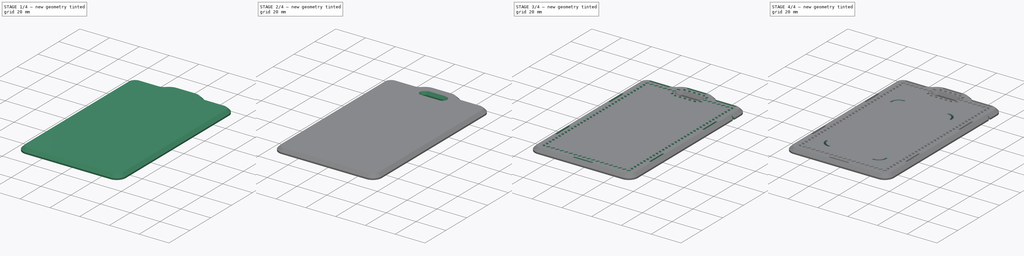
[diagram: build sequence overview — one tinted view per stage of 4, left to right]
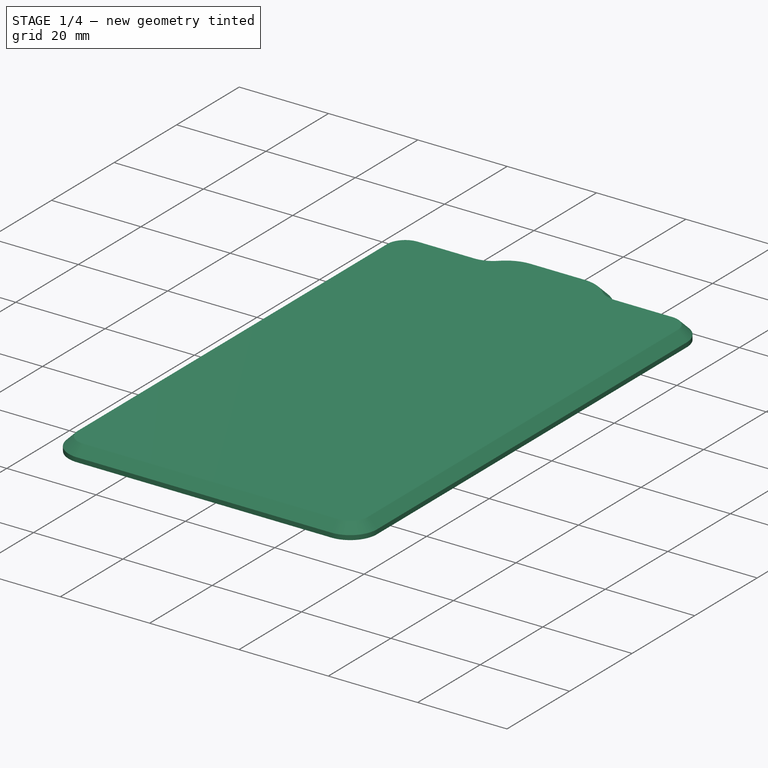
[diagram: stage 1 of 4 — iso view after this stage's code; geometry added in this stage tinted green]
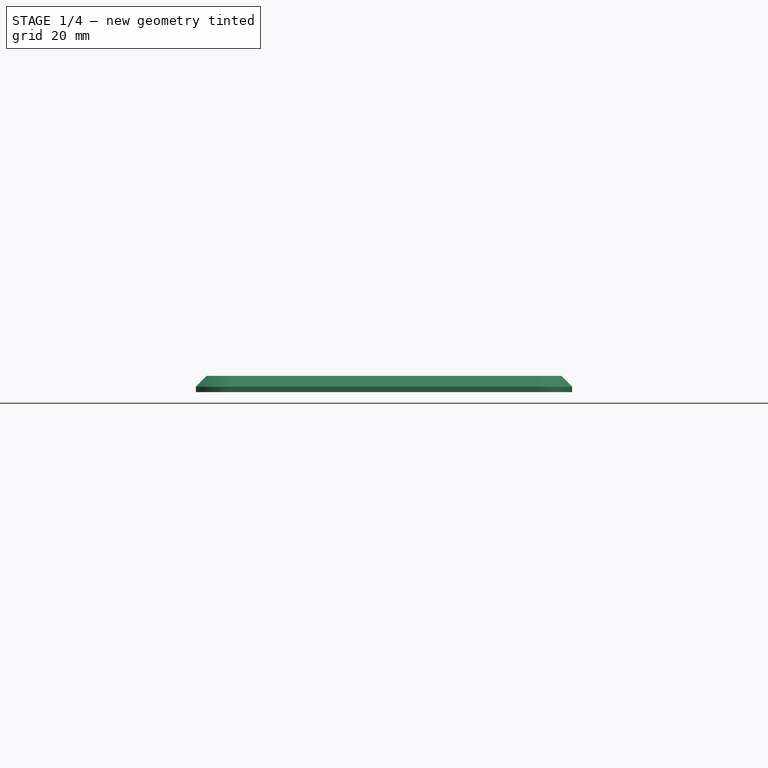
[diagram: stage 1 of 4 — front view after this stage's code; geometry added in this stage tinted green]
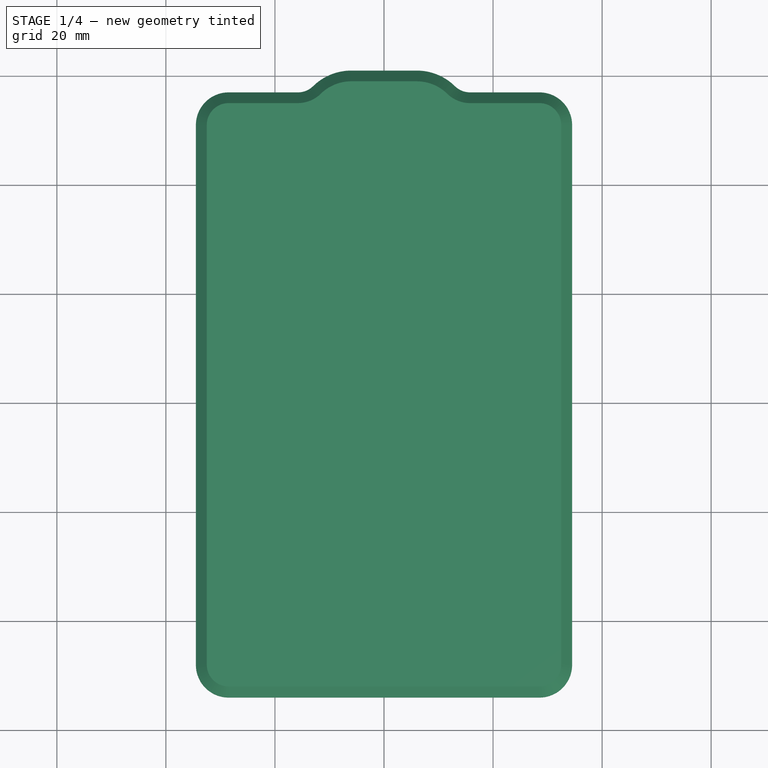
[diagram: stage 1 of 4 — top view after this stage's code; geometry added in this stage tinted green]
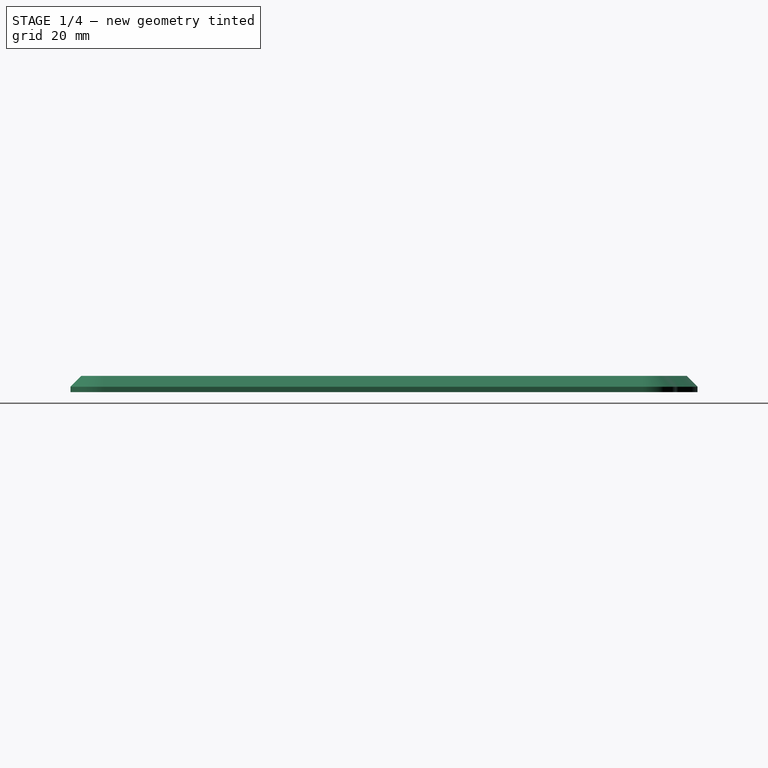
[diagram: stage 1 of 4 — right view after this stage's code; geometry added in this stage tinted green]
FCSTD DOCUMENT  (FreeCAD 1.0R39109 (Git))
Label: capsule hole badge holder
License: All rights reserved
objects: Sketcher::SketchObject×10, Part::FeaturePython×7, Part::Part2DObjectPython×6, PartDesign::SubShapeBinder×6, PartDesign::Pocket×6, TechDraw::DrawProjGroupItem×2, TechDraw::DrawViewDimension×2, App::DocumentObjectGroup×2, PartDesign::Pad×2, TechDraw::DrawSVGTemplate×1, App::Part×1, TechDraw::DrawPage×1, PartDesign::Mirrored×1, PartDesign::Body×1
note: 62 computed .brp shape members not serialized (recipe doc carries the construction recipe); baked Part::Feature solids carry a one-line shape summary decoded from their .brp

FEATURE [Sketcher::SketchObject] Sketch  label="Outline"
  ArcFitTolerance = 1e-06
  AttachmentSupport = -> [XY_Plane]
  FullyConstrained = true
  MakeInternals = false
  MapMode = 5
  sketch-geometry (23):
    g0: LineSegment StartX=-28.5 StartY=-51 StartZ=0 EndX=28.5 EndY=-51 EndZ=0
    g1: LineSegment StartX=31.5 StartY=-48 StartZ=0 EndX=31.5 EndY=51 EndZ=0
    g2: LineSegment StartX=-31.5 StartY=51 StartZ=0 EndX=-31.5 EndY=-48 EndZ=0
    g3: GeomPoint [constr] X=0 Y=0 Z=0
    g4: ArcOfCircle CenterX=-6 CenterY=51 CenterZ=0 NormalX=0 NormalY=0 NormalZ=1 AngleXU=0 Radius=2 StartAngle=1.5708 EndAngle=4.71239
    g5: ArcOfCircle CenterX=6 CenterY=51 CenterZ=0 NormalX=0 NormalY=0 NormalZ=1 AngleXU=0 Radius=2 StartAngle=4.71239 EndAngle=7.85398
    g6: LineSegment StartX=-6 StartY=53 StartZ=0 EndX=6 EndY=53 EndZ=0
    g7: LineSegment StartX=-6 StartY=49 StartZ=0 EndX=6 EndY=49 EndZ=0
    g8: ArcOfCircle CenterX=-28.5 CenterY=51 CenterZ=0 NormalX=0 NormalY=0 NormalZ=1 AngleXU=0 Radius=3 StartAngle=1.5708 EndAngle=3.14159
    g9: ArcOfCircle CenterX=28.5 CenterY=51 CenterZ=0 NormalX=0 NormalY=0 NormalZ=1 AngleXU=0 Radius=3 StartAngle=0 EndAngle=1.5708
    g10: LineSegment StartX=-15.798 StartY=54 StartZ=0 EndX=-28.5 EndY=54 EndZ=0
    g11: LineSegment StartX=15.798 StartY=54 StartZ=0 EndX=28.5 EndY=54 EndZ=0
    g12: LineSegment StartX=6 StartY=58 StartZ=0 EndX=-6 EndY=58 EndZ=0
    g13: ArcOfCircle CenterX=28.5 CenterY=-48 CenterZ=0 NormalX=0 NormalY=0 NormalZ=1 AngleXU=0 Radius=3 StartAngle=4.71239 EndAngle=6.28319
    g14: GeomPoint [constr] X=31.5 Y=-51 Z=0
    g15: ArcOfCircle CenterX=-28.5 CenterY=-48 CenterZ=0 NormalX=0 NormalY=0 NormalZ=1 AngleXU=0 Radius=3 StartAngle=3.14159 EndAngle=4.71239
    g16: GeomPoint [constr] X=-31.5 Y=-51 Z=0
    g17: GeomPoint [constr] X=-8 Y=51 Z=0
    g18: GeomPoint [constr] X=8 Y=51 Z=0
    g19: ArcOfCircle CenterX=-6 CenterY=51 CenterZ=0 NormalX=0 NormalY=0 NormalZ=1 AngleXU=0 Radius=7 StartAngle=1.5708 EndAngle=2.34599
    g20: ArcOfCircle CenterX=-15.798 CenterY=61 CenterZ=0 NormalX=0 NormalY=0 NormalZ=1 AngleXU=0 Radius=7 StartAngle=4.71239 EndAngle=5.48758
    g21: ArcOfCircle CenterX=6 CenterY=51 CenterZ=0 NormalX=0 NormalY=0 NormalZ=1 AngleXU=0 Radius=7 StartAngle=0.795603 EndAngle=1.5708
    g22: ArcOfCircle CenterX=15.798 CenterY=61 CenterZ=0 NormalX=0 NormalY=0 NormalZ=1 AngleXU=0 Radius=7 StartAngle=3.9372 EndAngle=4.71239
  constraints (54):
    c: Horizontal(g0)
    c: Vertical(g1)
    c: Vertical(g2)
    c: Symmetric(g1,g16,g3)
    c: Coincident(g3,g-1)
    c: Tangent(g4,g6) = 1.5708
    c: Tangent(g4,g7) = -1.5708
    c: Tangent(g5,g6) = 1.5708
    c: Tangent(g5,g7) = -1.5708
    c: Equal(g4,g5)
    c: Symmetric(g4,g5,g-2)
    c: Coincident(g8,g2)
    c: Coincident(g9,g1)
    c: Equal(g8,g9)
    c: Horizontal(g2,g1)
    c: Horizontal(g8,g2)
    c: Vertical(g8,g8)
    c: Horizontal(g9,g1)
    c: Vertical(g9,g9)
    c: Coincident(g10,g8)
    c: Coincident(g11,g9)
    c: Horizontal(g11)
    c: Radius(g9) = 3
    c: DistanceX(g16,g14) = 63
    c: DistanceY(g14,g9) = 105
    c: PointOnObject(g14,g1)
    c: PointOnObject(g14,g0)
    c: Tangent(g1,g13) = -1.5708
    c: Tangent(g0,g13) = -1.5708
    c: PointOnObject(g16,g2)
    c: PointOnObject(g16,g0)
    c: Tangent(g2,g15) = -1.5708
    c: Tangent(g0,g15) = -1.5708
    c: Equal(g15,g13)
    c: Equal(g15,g8)
    c: Distance(g6,g7) = 4
    c: PointOnObject(g17,g4)
    c: PointOnObject(g18,g5)
    c: Horizontal(g17,g18)
    c: Horizontal(g18,g5)
    c: DistanceX(g17,g18) = 16
    c: Symmetric(g12,g12,g-2)
    c: Symmetric(g10,g11,g-2)
    c: Equal(g20,g19)
    c: Equal(g19,g21)
    c: Tangent(g20,g19) = 1.5708
    c: Tangent(g20,g10) = 1.5708
    c: Tangent(g19,g12) = -1.5708
    c: Tangent(g21,g12) = -1.5708
    c: Tangent(g22,g21) = 1.5708
    c: Tangent(g22,g11) = -1.5708
    c: Horizontal(g5,g9)
    c: Distance(g6,g12) = 5
    c: Coincident(g19,g4)
FEATURE [Sketcher::SketchObject] Sketch001  label="punch guide"
  ArcFitTolerance = 1e-06
  AttachmentSupport = -> [XY_Plane]
  ExternalGeometry = -> [Sketch]
  FullyConstrained = true
  MakeInternals = false
  MapMode = 5
  sketch-geometry (10):
    g0: LineSegment StartX=28.5 StartY=51 StartZ=0 EndX=28.5 EndY=-45 EndZ=0
    g1: LineSegment StartX=28.5 StartY=-48 StartZ=0 EndX=-25.5 EndY=-48 EndZ=0
    g2: LineSegment StartX=-28.5 StartY=-48 StartZ=0 EndX=-28.5 EndY=48 EndZ=0
    g3: LineSegment [constr] StartX=-6 StartY=58 StartZ=0 EndX=-6 EndY=53 EndZ=0
    g4: ArcOfCircle CenterX=-6 CenterY=51 CenterZ=0 NormalX=0 NormalY=0 NormalZ=1 AngleXU=0 Radius=4.5 StartAngle=1.5708 EndAngle=4.71239
    g5: LineSegment StartX=-6 StartY=55.5 StartZ=0 EndX=6 EndY=55.5 EndZ=0
    g6: LineSegment StartX=-6 StartY=46.5 StartZ=0 EndX=6.00002 EndY=46.5 EndZ=0
    g7: ArcOfCircle CenterX=6 CenterY=51 CenterZ=0 NormalX=0 NormalY=0 NormalZ=1 AngleXU=0 Radius=4.5 StartAngle=4.71239 EndAngle=7.85398
    g8: LineSegment StartX=25.5 StartY=51 StartZ=0 EndX=13.5 EndY=51 EndZ=0
    g9: LineSegment StartX=-28.5 StartY=51 StartZ=0 EndX=-13.5 EndY=51 EndZ=0
  constraints (32):
    c: Coincident(g0,g-4)
    c: Vertical(g0)
    c: Distance(g0,g-6) = 3
    c: Coincident(g1,g-6)
    c: Horizontal(g1)
    c: DistanceX(g1,g1) = 54
    c: Distance(g1,g-8) = 3
    c: Coincident(g2,g-8)
    c: Vertical(g2)
    c: Distance(g2,g-10) = 3
    c: DistanceY(g0,g0) = 96
    c: Coincident(g3,g-15)
    c: Coincident(g3,g-13)
    c: Coincident(g4,g-13)
    c: Symmetric(g3,g3,g4)
    c: Vertical(g4,g4)
    c: Coincident(g5,g4)
    c: Horizontal(g5)
    c: Coincident(g6,g4)
    c: Horizontal(g6)
    c: Coincident(g7,g-14)
    c: Coincident(g7,g5)
    c: Coincident(g7,g6)
    c: Vertical(g5,g7)
    c: Horizontal(g8)
    c: DistanceX(g8,g0) = 3
    c: Horizontal(g0,g8)
    c: DistanceX(g8,g8) = 12
    c: Coincident(g9,g-10)
    c: Horizontal(g9)
    c: DistanceX(g9,g9) = 15
    c: Distance(g8,g7) = 3
FEATURE [Sketcher::SketchObject] Sketch002  label="punch hole profile"
  ArcFitTolerance = 1e-06
  AttachmentSupport = -> [XZ_Plane]
  FullyConstrained = true
  MakeInternals = false
  MapMode = 5
  Placement = pos=(0,0,0) rot=(1,0,0;1.5708rad)
  sketch-geometry (5):
    g0: LineSegment StartX=0.742462 StartY=-0.318198 StartZ=0 EndX=-0.318198 EndY=0.742462 EndZ=0
    g1: LineSegment StartX=-0.318198 StartY=0.742462 StartZ=0 EndX=-0.742462 EndY=0.318198 EndZ=0
    g2: LineSegment StartX=-0.742462 StartY=0.318198 StartZ=0 EndX=0.318198 EndY=-0.742462 EndZ=0
    g3: LineSegment StartX=0.318198 StartY=-0.742462 StartZ=0 EndX=0.742462 EndY=-0.318198 EndZ=0
    g4: GeomPoint [constr] X=0 Y=0 Z=0
  constraints (12):
    c: Coincident(g0,g1)
    c: Coincident(g1,g2)
    c: Coincident(g2,g3)
    c: Coincident(g3,g0)
    c: Symmetric(g2,g0,g4)
    c: Coincident(g4,g-1)
    c: Distance(g1,g1) = 0.6
    c: Parallel(g2,g0)
    c: Parallel(g1,g3)
    c: Perpendicular(g3,g2)
    c: Distance(g2,g2) = 1.5
    c: Angle(g2,g-1) = 0.785398
FEATURE [Part::Part2DObjectPython] Clone2D  label="Sketch002 (2D)"  # Draft 2D object (typed FeaturePython)
  Fuse = false
  Objects = -> [Sketch002]
  Placement = pos=(0,0,0) rot=(1,0,0;1.5708rad)
  Scale = (1,1,1)
FEATURE [Part::FeaturePython] PathArray  # WARN: FeaturePython — macro-defined, semantics opaque (R4)
  Align = true
  AlignMode = 0
  AlwaysSyncPlacement = false
  Base = -> Clone2D
  Count = 33
  EndOffset = 0
  ExpandArray = false
  ExtraTranslation = (0,0,0)
  ForceVertical = false
  Fuse = false
  PathObject = -> Sketch001
  PathSubelements = -> [Sketch001]
  PlacementList = 33 placements: arithmetic series from (28.5,51,0) step (0,-3,0) to (28.5,-45,0)
  ScaleList = (33) [(1,1,1),(1,1,1),(1,1,1),(1,1,1),(1,1,1),(1,1,1),(1,1,1),(1,1,1),(1,1,1),(1,1,1),(1,1,1),(1,1,1),(1,1,1),(1,1,1),(1,1,1),(1,1,1),(1,1,1),(1,1,1),+15 more]
  StartOffset = 0
  TangentVector = (1,0,0)
  VerticalVector = (0,0,1)
  expr: Count = 96 / 3 + 1
FEATURE [Part::Part2DObjectPython] Clone2D001  label="Sketch002 (2D)001"  # Draft 2D object (typed FeaturePython)
  Fuse = false
  Objects = -> [Sketch002]
  Placement = pos=(0,0,0) rot=(1,0,0;1.5708rad)
  Scale = (1,1,1)
FEATURE [Part::FeaturePython] PathArray001  # WARN: FeaturePython — macro-defined, semantics opaque (R4)
  Align = true
  AlignMode = 0
  AlwaysSyncPlacement = false
  Base = -> Clone2D001
  Count = 19
  EndOffset = 0
  ExpandArray = false
  ExtraTranslation = (0,0,0)
  ForceVertical = false
  Fuse = false
  PathObject = -> Sketch001
  PathSubelements = -> [Sketch001]
  PlacementList = 19 placements: arithmetic series from (28.5,-48,0) step (-3,0,0) to (-25.5,-48,0)
  ScaleList = (19) [(1,1,1),(1,1,1),(1,1,1),(1,1,1),(1,1,1),(1,1,1),(1,1,1),(1,1,1),(1,1,1),(1,1,1),(1,1,1),(1,1,1),(1,1,1),(1,1,1),(1,1,1),(1,1,1),(1,1,1),(1,1,1),+1 more]
  StartOffset = 0
  TangentVector = (1,0,0)
  VerticalVector = (0,0,1)
  expr: Count = 54 / 3 + 1
FEATURE [Part::Part2DObjectPython] Clone2D002  label="Sketch002 (2D)002"  # Draft 2D object (typed FeaturePython)
  Fuse = false
  Objects = -> [Sketch002]
  Placement = pos=(0,0,0) rot=(1,0,0;1.5708rad)
  Scale = (1,1,1)
FEATURE [Part::FeaturePython] PathArray002  # WARN: FeaturePython — macro-defined, semantics opaque (R4)
  Align = true
  AlignMode = 0
  AlwaysSyncPlacement = false
  Base = -> Clone2D002
  Count = 33
  EndOffset = 0
  ExpandArray = false
  ExtraTranslation = (0,0,0)
  ForceVertical = false
  Fuse = false
  PathObject = -> Sketch001
  PathSubelements = -> [Sketch001]
  PlacementList = 33 placements: arithmetic series from (-28.5,-48,0) step (0,3,0) to (-28.5,48,0)
  ScaleList = (33) [(1,1,1),(1,1,1),(1,1,1),(1,1,1),(1,1,1),(1,1,1),(1,1,1),(1,1,1),(1,1,1),(1,1,1),(1,1,1),(1,1,1),(1,1,1),(1,1,1),(1,1,1),(1,1,1),(1,1,1),(1,1,1),+15 more]
  StartOffset = 0
  TangentVector = (1,0,0)
  VerticalVector = (0,0,1)
  expr: Count = 96 / 3 + 1
FEATURE [Sketcher::SketchObject] Sketch003  label="punch guide capsule hole top"
  ArcFitTolerance = 1e-06
  AttachmentSupport = -> [XY_Plane]
  ExternalGeometry = -> [Sketch001]
  FullyConstrained = false
  MakeInternals = false
  MapMode = 5
  sketch-geometry (18):
    g0: BSplineCurve PolesCount=3 KnotsCount=2 Degree=2 IsPeriodic=0
    g1: BSplineCurve PolesCount=3 KnotsCount=2 Degree=2 IsPeriodic=0
    g2: BSplineCurve PolesCount=2 KnotsCount=2 Degree=1 IsPeriodic=0
    g3: Circle [constr] CenterX=-6 CenterY=55.5 CenterZ=0 NormalX=0 NormalY=0 NormalZ=1 AngleXU=0 Radius=1
    g4: Circle [constr] CenterX=-10.5 CenterY=55.5 CenterZ=0 NormalX=0 NormalY=0 NormalZ=1 AngleXU=0 Radius=0.71
    g5: Circle [constr] CenterX=-10.5 CenterY=51 CenterZ=0 NormalX=0 NormalY=0 NormalZ=1 AngleXU=0 Radius=1
    g6: GeomPoint [constr] X=-6 Y=55.5 Z=0
    g7: GeomPoint [constr] X=-10.5 Y=51 Z=0
    g8: Circle [constr] CenterX=-6 CenterY=55.5 CenterZ=0 NormalX=0 NormalY=0 NormalZ=1 AngleXU=0 Radius=1
    g9: Circle [constr] CenterX=6 CenterY=55.5 CenterZ=0 NormalX=0 NormalY=0 NormalZ=1 AngleXU=0 Radius=1
    g10: GeomPoint [constr] X=-6 Y=55.5 Z=0
    g11: GeomPoint [constr] X=6 Y=55.5 Z=0
    g12: Circle [constr] CenterX=10.5 CenterY=51 CenterZ=0 NormalX=0 NormalY=0 NormalZ=1 AngleXU=0 Radius=1
    g13: Circle [constr] CenterX=10.5 CenterY=55.5 CenterZ=0 NormalX=0 NormalY=0 NormalZ=1 AngleXU=0 Radius=0.71
    g14: Circle [constr] CenterX=6 CenterY=55.5 CenterZ=0 NormalX=0 NormalY=0 NormalZ=1 AngleXU=0 Radius=1
    g15: GeomPoint [constr] X=10.5 Y=51 Z=0
    g16: GeomPoint [constr] X=6 Y=55.5 Z=0
    g17: Circle CenterX=0 CenterY=51 CenterZ=0 NormalX=0 NormalY=0 NormalZ=1 AngleXU=0 Radius=0.611587
  constraints (35):
    c: Coincident(g0,g-4)
    c: Coincident(g1,g-5)
    c: Coincident(g2,g0)
    c: Coincident(g2,g1)
    c: InternalAlignment(g3,g0)
    c: Weight(g3) = 1
    c: InternalAlignment(g4,g0)
    c: InternalAlignment(g5,g0)
    c: Equal(g5,g3)
    c: InternalAlignment(g6,g0)
    c: InternalAlignment(g7,g0)
    c: InternalAlignment(g8,g2)
    c: Weight(g8) = 1
    c: InternalAlignment(g9,g2)
    c: Equal(g9,g8)
    c: InternalAlignment(g10,g2)
    c: InternalAlignment(g11,g2)
    c: InternalAlignment(g12,g1)
    c: Weight(g12) = 1
    c: InternalAlignment(g13,g1)
    c: InternalAlignment(g14,g1)
    c: Equal(g14,g12)
    c: InternalAlignment(g15,g1)
    c: InternalAlignment(g16,g1)
    c: PointOnObject(g0,g-3)
    c: Horizontal(g0,g-3)
    c: PointOnObject(g1,g-5)
    c: Horizontal(g1,g-5)
    c: Symmetric(g4,g13,g-2)
    c: Vertical(g1,g13)
    c: Horizontal(g13,g1)
    c: Equal(g13,g4)
    c: Weight(g13) = 0.71
    c: PointOnObject(g17,g-2)
    c: Horizontal(g17,g-5)
FEATURE [Part::Part2DObjectPython] Clone2D004  label="Sketch002 (2D)004"  # Draft 2D object (typed FeaturePython)
  Fuse = false
  Objects = -> [Sketch002]
  Placement = pos=(0,0,0) rot=(1,0,0;-1.5708rad)
  Scale = (1,1,1)
FEATURE [Part::FeaturePython] PathArray003  # WARN: FeaturePython — macro-defined, semantics opaque (R4)
  Align = true
  AlignMode = 0
  AlwaysSyncPlacement = false
  Base = -> Clone2D004
  Count = 9
  EndOffset = 0
  ExpandArray = false
  ExtraTranslation = (0,0,0)
  ForceVertical = false
  Fuse = false
  PathObject = -> Sketch003
  PlacementList = 9 placements: [(10.5,51,0),(9.3678,53.9893,0),(6.53435,55.4684,0),(3.2678,55.5,0),(8.88178e-16,55.5,0),(-3.2678,55.5,0),(-6.53435,55.4684,0),(-9.3678,53.9893,0),(-10.5,51,0)]
  ScaleList = (9) [(1,1,1),(1,1,1),(1,1,1),(1,1,1),(1,1,1),(1,1,1),(1,1,1),(1,1,1),(1,1,1)]
  StartOffset = 0
  TangentVector = (1,0,0)
  VerticalVector = (0,0,1)
FEATURE [Part::Part2DObjectPython] Clone2D005  label="Sketch002 (2D)005"  # Draft 2D object (typed FeaturePython)
  Fuse = false
  Objects = -> [Sketch002]
  Placement = pos=(0,0,0) rot=(1,0,0;1.5708rad)
  Scale = (1,1,1)
FEATURE [Part::FeaturePython] PathArray004  # WARN: FeaturePython — macro-defined, semantics opaque (R4)
  Align = true
  AlignMode = 0
  AlwaysSyncPlacement = false
  Base = -> Clone2D005
  Count = 5
  EndOffset = 0
  ExpandArray = false
  ExtraTranslation = (0,0,0)
  ForceVertical = false
  Fuse = false
  PathObject = -> Sketch001
  PathSubelements = -> [Sketch001]
  PlacementList = 5 placements: arithmetic series from (25.5,51,0) step (-3,0,0) to (13.5,51,0)
  ScaleList = (5) [(1,1,1),(1,1,1),(1,1,1),(1,1,1),(1,1,1)]
  StartOffset = 0
  TangentVector = (1,0,0)
  VerticalVector = (0,0,1)
  expr: Count = 12 / 3 + 1
FEATURE [Part::Part2DObjectPython] Clone2D006  label="Sketch002 (2D)006"  # Draft 2D object (typed FeaturePython)
  Fuse = false
  Objects = -> [Sketch002]
  Placement = pos=(0,0,0) rot=(1,0,0;1.5708rad)
  Scale = (1,1,1)
FEATURE [Part::FeaturePython] PathArray005  # WARN: FeaturePython — macro-defined, semantics opaque (R4)
  Align = true
  AlignMode = 0
  AlwaysSyncPlacement = false
  Base = -> Clone2D006
  Count = 6
  EndOffset = 0
  ExpandArray = false
  ExtraTranslation = (0,0,0)
  ForceVertical = false
  Fuse = false
  PathObject = -> Sketch001
  PathSubelements = -> [Sketch001]
  PlacementList = 6 placements: arithmetic series from (-28.5,51,0) step (3,0,0) to (-13.5,51,0)
  ScaleList = (6) [(1,1,1),(1,1,1),(1,1,1),(1,1,1),(1,1,1),(1,1,1)]
  StartOffset = 0
  TangentVector = (1,0,0)
  VerticalVector = (0,0,1)
  expr: Count = 15 / 3 + 1
FEATURE [Part::FeaturePython] Array  # Draft array (typed FeaturePython)
  AlwaysSyncPlacement = false
  Angle = 360
  ArrayType = 1
  Axis = (0,0,1)
  Base = -> PathArray003
  Center = (0,51,0)
  Count = 2
  ExpandArray = false
  Fuse = true
  IntervalAxis = (0,0,0)
  IntervalX = (50,0,0)
  IntervalY = (0,50,0)
  IntervalZ = (0,0,50)
  NumberCircles = 3
  NumberPolar = 2
  NumberX = 2
  NumberY = 2
  NumberZ = 1
  PlacementList = 2 placements: [(0,0,0),(6.2457e-15,102,0)]
  RadialDistance = 50
  ScaleList = (2) [(1,1,1),(1,1,1)]
  Symmetry = 1
  TangentialDistance = 25
FEATURE [TechDraw::DrawSVGTemplate] Template
  Height = 297
  Orientation = 0
  Template = /Applications/FreeCAD.app/Contents/Resources/share/Mod/TechDraw/Templates/A4_Portrait_blank.svg
  Width = 210
FEATURE [Sketcher::SketchObject] Sketch004
  ArcFitTolerance = 1e-06
  FullyConstrained = true
  MakeInternals = false
  sketch-geometry (2):
    g0: LineSegment StartX=-100 StartY=140 StartZ=0 EndX=-100 EndY=-140 EndZ=0
    g1: LineSegment StartX=-100 StartY=140 StartZ=0 EndX=100 EndY=140 EndZ=0
  constraints (5):
    c: DistanceY(g0,g0) = 280
    c: Coincident(g1,g0)
    c: DistanceX(g1,g1) = 200
    c: Symmetric(g0,g1,g-2)
    c: Symmetric(g0,g0,g-1)
FEATURE [Sketcher::SketchObject] Sketch006
  ArcFitTolerance = 1e-06
  ExternalGeometry = -> [Sketch]
  FullyConstrained = true
  MakeInternals = false
  sketch-geometry (1):
    g0: LineSegment StartX=-31.5 StartY=44 StartZ=0 EndX=31.5 EndY=44 EndZ=0
  constraints (4):
    c: Horizontal(g0)
    c: PointOnObject(g0,g-3)
    c: PointOnObject(g0,g-4)
    c: DistanceY(g-1,g0) = 44
FEATURE [TechDraw::DrawProjGroupItem] View001
  CoarseView = false
  Direction = (0,0,1)
  Focus = 100
  HardHidden = false
  IsoCount = 0
  IsoHidden = false
  IsoVisible = false
  LockPosition = false
  Perspective = false
  Rotation = 0
  RotationVector = (1,0,0)
  ScaleType = 0
  ScrubCount = 1
  SeamHidden = false
  SeamVisible = false
  SmoothHidden = false
  SmoothVisible = true
  Source = -> [Sketch004]
  Type = 0
  X = 105
  XDirection = (1,0,0)
  Y = 148.5
FEATURE [TechDraw::DrawViewDimension] Dimension
  AngleOverride = false
  Arbitrary = false
  ArbitraryTolerances = false
  BoxCorners = (2) [(-100,-140,0),(100,140,0)]
  EqualTolerance = true
  ExtensionAngle = 0
  FormatSpec = %.2w
  FormatSpecOverTolerance = %+.2w
  FormatSpecUnderTolerance = %+.2w
  Inverted = false
  LineAngle = 0
  LockPosition = false
  MeasureType = 1
  OverTolerance = 0
  References2D = -> [View001]
  Rotation = 0
  ScaleType = 0
  TheoreticalExact = false
  Type = 2
  UnderTolerance = 0
  X = -94.6958
  Y = 0
FEATURE [TechDraw::DrawViewDimension] Dimension001
  AngleOverride = false
  Arbitrary = false
  ArbitraryTolerances = false
  BoxCorners = (2) [(-100,-140,0),(100,140,0)]
  EqualTolerance = true
  ExtensionAngle = 0
  FormatSpec = %.2w
  FormatSpecOverTolerance = %+.2w
  FormatSpecUnderTolerance = %+.2w
  Inverted = false
  LineAngle = 0
  LockPosition = false
  MeasureType = 1
  OverTolerance = 0
  References2D = -> [View001]
  Rotation = 0
  ScaleType = 0
  TheoreticalExact = false
  Type = 1
  UnderTolerance = 0
  X = 0
  Y = 135.256
FEATURE [Sketcher::SketchObject] Sketch007  label="window"
  ArcFitTolerance = 1e-06
  AttachmentSupport = -> [XY_Plane]
  ExternalGeometry = -> [Sketch]
  FullyConstrained = true
  MakeInternals = false
  MapMode = 5
  sketch-geometry (15):
    g0: LineSegment StartX=-20 StartY=27.5 StartZ=0 EndX=-20 EndY=-34.5 EndZ=0
    g1: LineSegment StartX=-15 StartY=-39.5 StartZ=0 EndX=15 EndY=-39.5 EndZ=0
    g2: LineSegment StartX=20 StartY=-34.5 StartZ=0 EndX=20 EndY=27.5 EndZ=0
    g3: LineSegment StartX=15 StartY=32.5 StartZ=0 EndX=-15 EndY=32.5 EndZ=0
    g4: GeomPoint [constr] X=0 Y=-3.5 Z=0
    g5: ArcOfCircle CenterX=-15 CenterY=27.5 CenterZ=0 NormalX=0 NormalY=0 NormalZ=1 AngleXU=0 Radius=5 StartAngle=1.5708 EndAngle=3.14159
    g6: GeomPoint [constr] X=-20 Y=32.5 Z=0
    g7: ArcOfCircle CenterX=-15 CenterY=-34.5 CenterZ=0 NormalX=0 NormalY=0 NormalZ=1 AngleXU=0 Radius=5 StartAngle=3.14159 EndAngle=4.71239
    g8: GeomPoint [constr] X=-20 Y=-39.5 Z=0
    g9: ArcOfCircle CenterX=15 CenterY=-34.5 CenterZ=0 NormalX=0 NormalY=0 NormalZ=1 AngleXU=0 Radius=5 StartAngle=4.71239 EndAngle=6.28319
    g10: GeomPoint [constr] X=20 Y=-39.5 Z=0
    g11: ArcOfCircle CenterX=15 CenterY=27.5 CenterZ=0 NormalX=0 NormalY=0 NormalZ=1 AngleXU=0 Radius=5 StartAngle=2e-16 EndAngle=1.5708
    g12: GeomPoint [constr] X=20 Y=32.5 Z=0
    g13: LineSegment [constr] StartX=20 StartY=-39.5 StartZ=0 EndX=31.5 EndY=-39.5 EndZ=0
    g14: LineSegment [constr] StartX=20 StartY=-39.5 StartZ=0 EndX=20 EndY=-51 EndZ=0
  constraints (35):
    c: Vertical(g0)
    c: Vertical(g2)
    c: Horizontal(g1)
    c: Horizontal(g3)
    c: Symmetric(g10,g6,g4)
    c: PointOnObject(g4,g-2)
    c: DistanceX(g8,g10) = 40
    c: DistanceY(g10,g12) = 72
    c: PointOnObject(g6,g3)
    c: PointOnObject(g6,g0)
    c: Tangent(g3,g5) = -1.5708
    c: Tangent(g0,g5) = -1.5708
    c: PointOnObject(g8,g0)
    c: PointOnObject(g8,g1)
    c: Tangent(g0,g7) = -1.5708
    c: Tangent(g1,g7) = -1.5708
    c: PointOnObject(g10,g1)
    c: PointOnObject(g10,g2)
    c: Tangent(g1,g9) = -1.5708
    c: Tangent(g2,g9) = -1.5708
    c: PointOnObject(g12,g2)
    c: PointOnObject(g12,g3)
    c: Tangent(g2,g11) = -1.5708
    c: Tangent(g3,g11) = -1.5708
    c: Equal(g5,g11)
    c: Equal(g11,g9)
    c: Equal(g9,g7)
    c: Radius(g11) = 5
    c: Coincident(g13,g10)
    c: PointOnObject(g13,g-3)
    c: Horizontal(g13)
    c: Coincident(g14,g10)
    c: PointOnObject(g14,g-4)
    c: Vertical(g14)
    c: Equal(g14,g13)
FEATURE [App::DocumentObjectGroup] Group001  label="punch holes"
  Group = -> [PathArray,PathArray001,PathArray002,PathArray004,PathArray005,Array]
FEATURE [App::Part] Part
  Group = -> [Sketch,Sketch007,Sketch002,Clone2D,Clone2D001,Clone2D002,Clone2D004,PathArray003,Clone2D005,Clone2D006,Sketch006,Sketch001,Sketch003,Group001,PathArray,PathArray001,PathArray002,PathArray004,PathArray005,Array]
  Origin = -> Origin
FEATURE [TechDraw::DrawProjGroupItem] View
  CoarseView = false
  Direction = (0,0,1)
  Focus = 100
  HardHidden = false
  IsoCount = 0
  IsoHidden = false
  IsoVisible = false
  LockPosition = false
  Perspective = false
  Rotation = 0
  RotationVector = (1,0,0)
  ScaleType = 0
  ScrubCount = 1
  SeamHidden = false
  SeamVisible = false
  SmoothHidden = false
  SmoothVisible = true
  Source = -> [Part]
  Type = 0
  X = 105
  XDirection = (1,0,0)
  Y = 148.5
FEATURE [TechDraw::DrawPage] Page
  KeepUpdated = true
  NextBalloonIndex = 1
  ProjectionType = 0
  Template = -> Template
  Views = -> [View001,Dimension,Dimension001,View]
FEATURE [App::DocumentObjectGroup] Group  label="drawings"
  Group = -> [Page,Sketch004]
FEATURE [PartDesign::SubShapeBinder] Binder
  BindCopyOnChange = 0
  BindMode = 0
  ClaimChildren = false
  Context = -> Body [Binder.]
  Fuse = false
  MakeFace = true
  OffsetFill = false
  OffsetIntersection = false
  OffsetJoinType = 0
  OffsetOpenResult = false
  PartialLoad = false
  Relative = true
  Support = -> [Part[Sketch.]]
  _Version = 2
FEATURE [PartDesign::SubShapeBinder] Binder001
  BindCopyOnChange = 0
  BindMode = 0
  ClaimChildren = false
  Context = -> Body [Binder001.]
  Fuse = false
  MakeFace = true
  OffsetFill = false
  OffsetIntersection = false
  OffsetJoinType = 0
  OffsetOpenResult = false
  PartialLoad = false
  Relative = true
  Support = -> [Part[Sketch007.]]
  _Version = 2
FEATURE [PartDesign::SubShapeBinder] Binder002
  BindCopyOnChange = 0
  BindMode = 0
  ClaimChildren = false
  Context = -> Body [Binder002.]
  Fuse = false
  MakeFace = true
  OffsetFill = false
  OffsetIntersection = false
  OffsetJoinType = 0
  OffsetOpenResult = false
  PartialLoad = false
  Relative = true
  Support = -> [Part[Sketch006.]]
  _Version = 2
FEATURE [PartDesign::SubShapeBinder] Binder003
  BindCopyOnChange = 0
  BindMode = 0
  ClaimChildren = false
  Context = -> Body [Binder003.]
  Fuse = false
  MakeFace = true
  OffsetFill = false
  OffsetIntersection = false
  OffsetJoinType = 0
  OffsetOpenResult = false
  PartialLoad = false
  Relative = true
  Support = -> [Part[Group001.]]
  _Version = 2
FEATURE [PartDesign::SubShapeBinder] Binder004
  BindCopyOnChange = 0
  BindMode = 0
  ClaimChildren = false
  Context = -> Body [Binder004.]
  Fuse = false
  MakeFace = true
  Offset = -3
  OffsetFill = false
  OffsetIntersection = false
  OffsetJoinType = 0
  OffsetOpenResult = false
  PartialLoad = false
  Relative = true
  Support = -> [Binder]
  _Version = 2
FEATURE [PartDesign::Pad] Pad
  Direction = (0,0,1)
  Length = 1
  Length2 = 10
  Profile = -> Binder004
  Suppressed = false
  Type = 0
FEATURE [PartDesign::Pad] Pad001
  BaseFeature = -> Pad
  Direction = (0,0,1)
  Length = 2
  Length2 = 10
  Profile = -> Pad [Face16]
  Suppressed = false
  TaperAngle = -45
  Type = 0
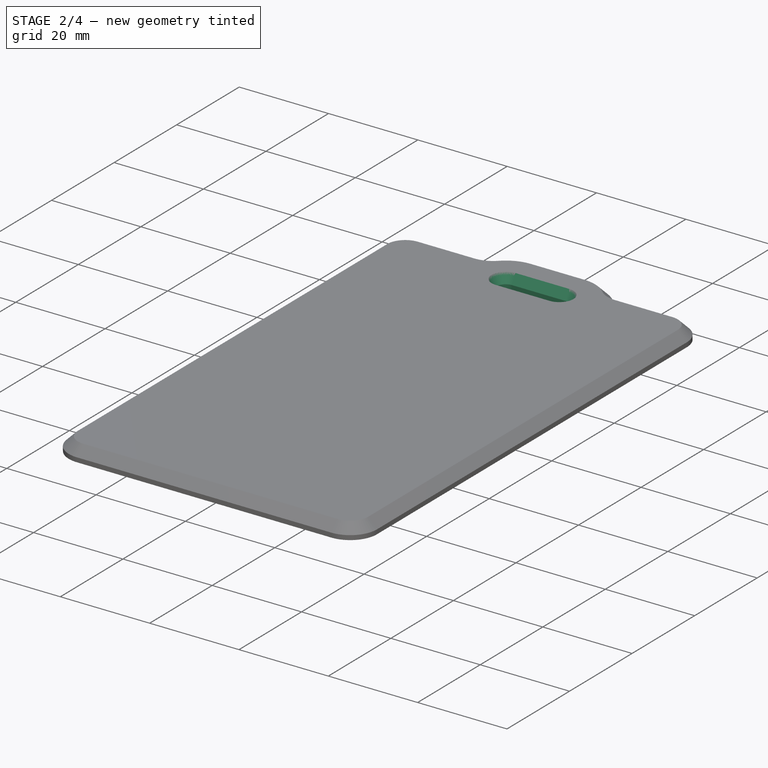
[diagram: stage 2 of 4 — iso view after this stage's code; geometry added in this stage tinted green]
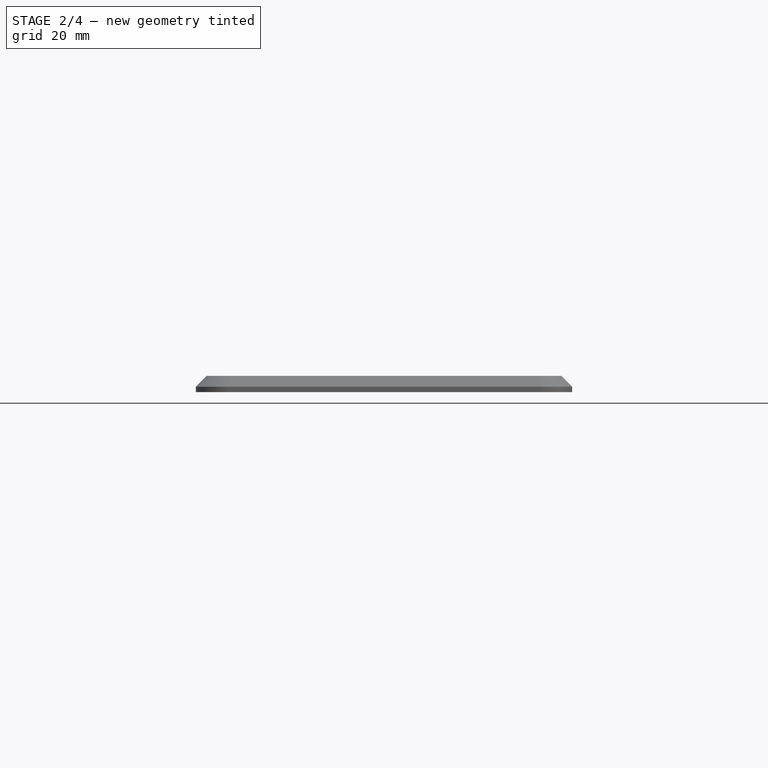
[diagram: stage 2 of 4 — front view after this stage's code; geometry added in this stage tinted green]
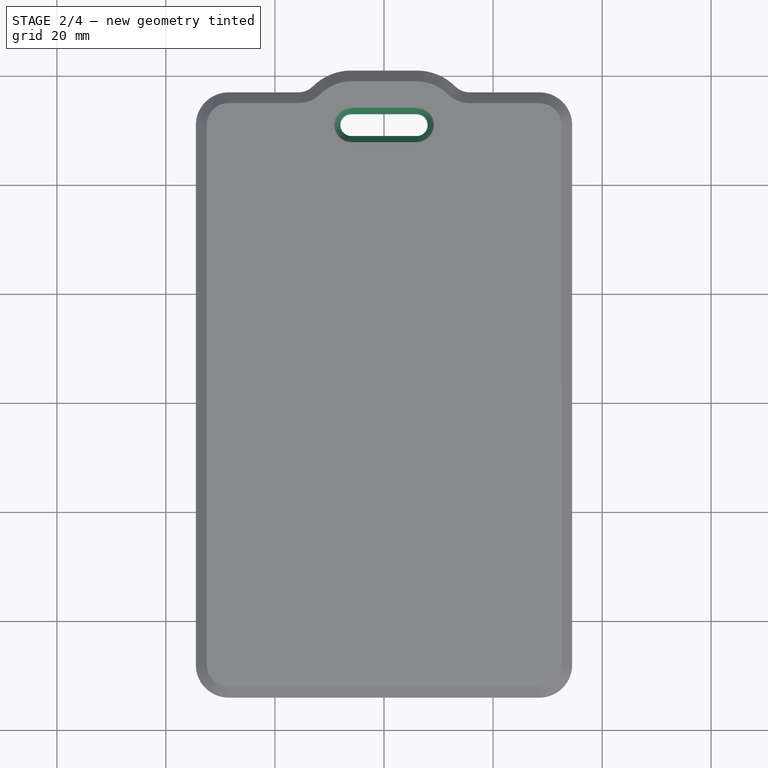
[diagram: stage 2 of 4 — top view after this stage's code; geometry added in this stage tinted green]
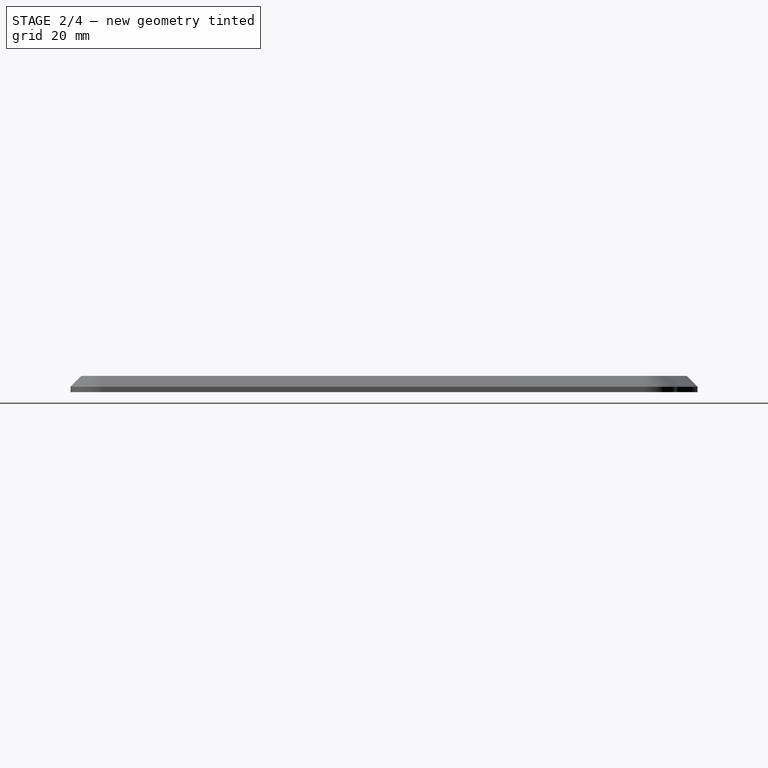
[diagram: stage 2 of 4 — right view after this stage's code; geometry added in this stage tinted green]
FEATURE [PartDesign::SubShapeBinder] Binder005
  BindCopyOnChange = 0
  BindMode = 0
  ClaimChildren = false
  Context = -> Body [Binder005.]
  Fuse = false
  MakeFace = true
  OffsetFill = false
  OffsetIntersection = false
  OffsetJoinType = 0
  OffsetOpenResult = false
  PartialLoad = false
  Relative = true
  Support = -> [Part[Sketch.Edge15,Sketch.Edge18,Sketch.Edge17,Sketch.Edge16]]
  _Version = 2
FEATURE [PartDesign::Pocket] Pocket
  BaseFeature = -> Pad001
  Direction = (0,0,-1)
  Length = 1
  Length2 = 5
  Profile = -> Binder005
  Reversed = true
  Suppressed = false
  Type = 0
FEATURE [PartDesign::Pocket] Pocket001
  BaseFeature = -> Pocket
  Direction = (0,0,1)
  Length = 5
  Length2 = 5
  Profile = -> Pocket [Face35]
  Suppressed = false
  TaperAngle = 30
  Type = 0
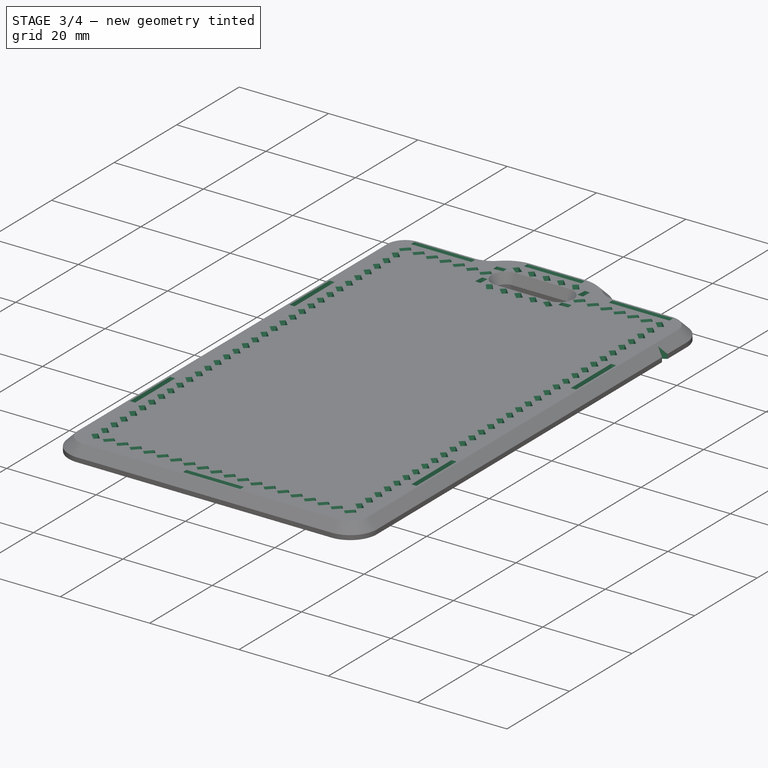
[diagram: stage 3 of 4 — iso view after this stage's code; geometry added in this stage tinted green]
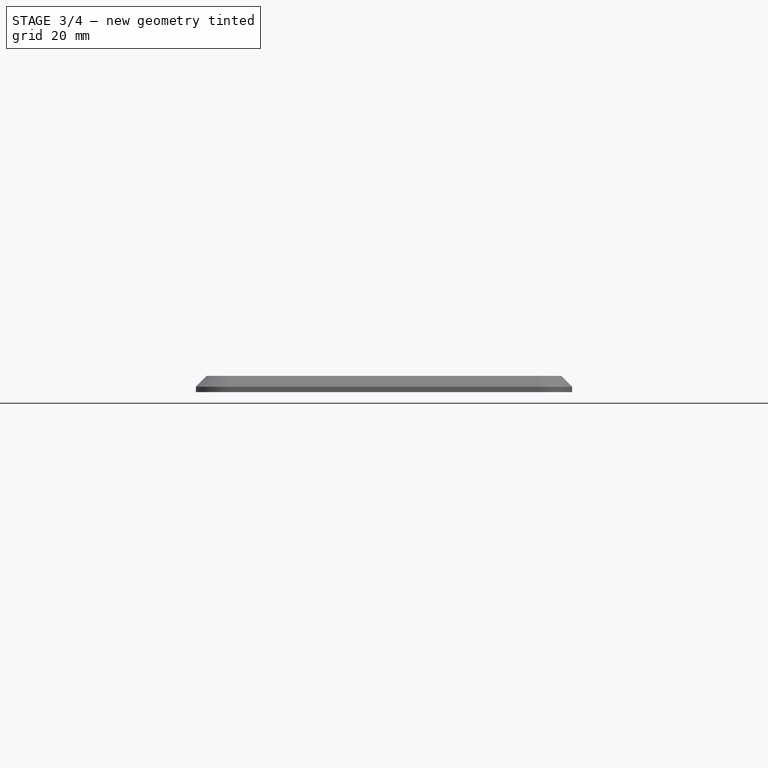
[diagram: stage 3 of 4 — front view after this stage's code; geometry added in this stage tinted green]
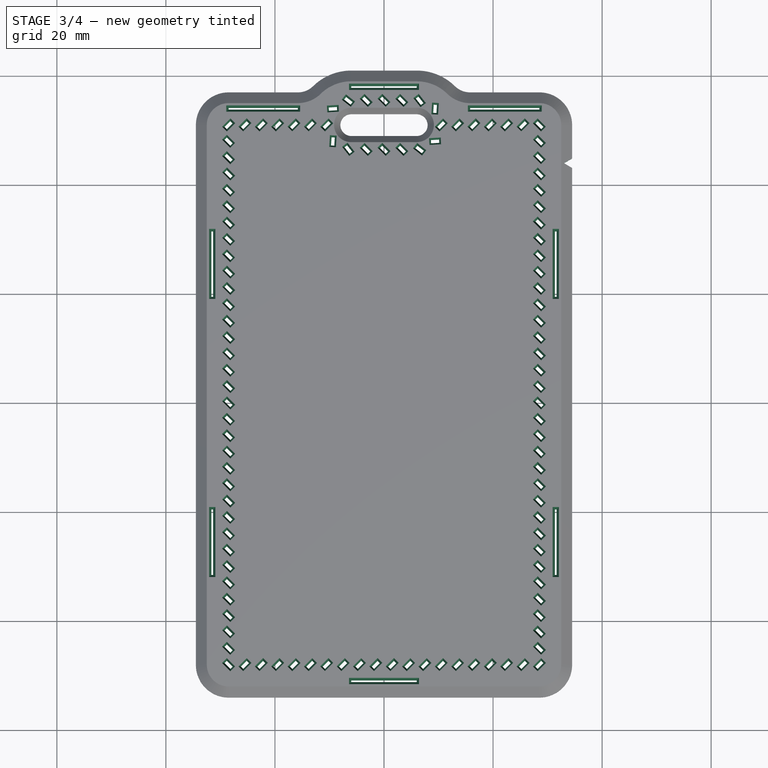
[diagram: stage 3 of 4 — top view after this stage's code; geometry added in this stage tinted green]
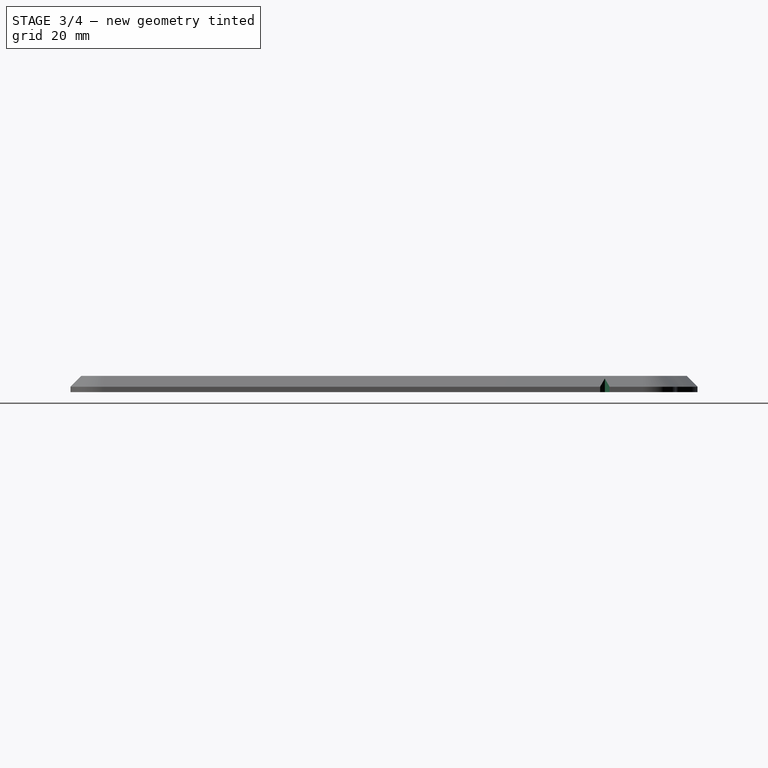
[diagram: stage 3 of 4 — right view after this stage's code; geometry added in this stage tinted green]
FEATURE [Sketcher::SketchObject] Sketch008
  ArcFitTolerance = 1e-06
  AttachmentSupport = -> [XY_Plane001]
  ExternalGeometry = -> [Binder]
  FullyConstrained = true
  MakeInternals = false
  MapMode = 5
  sketch-geometry (51):
    g0: LineSegment [constr] StartX=-28.5 StartY=54 StartZ=0 EndX=-15.798 EndY=54 EndZ=0
    g1: LineSegment [constr] StartX=-6 StartY=58 StartZ=0 EndX=6 EndY=58 EndZ=0
    g2: LineSegment [constr] StartX=15.798 StartY=54 StartZ=0 EndX=28.5 EndY=54 EndZ=0
    g3: LineSegment [constr] StartX=-31.5 StartY=31.5 StartZ=0 EndX=-31.5 EndY=19.5 EndZ=0
    g4: LineSegment [constr] StartX=31.5 StartY=31.5 StartZ=0 EndX=31.5 EndY=19.5 EndZ=0
    g5: LineSegment [constr] StartX=-31.5 StartY=-19.5 StartZ=0 EndX=-31.5 EndY=-31.5 EndZ=0
    g6: LineSegment [constr] StartX=31.5 StartY=-19.5 StartZ=0 EndX=31.5 EndY=-31.5 EndZ=0
    g7: LineSegment [constr] StartX=-6 StartY=-51 StartZ=0 EndX=6 EndY=-51 EndZ=0
    g8: LineSegment [constr] StartX=-31.5 StartY=51 StartZ=0 EndX=-31.5 EndY=31.5 EndZ=0
    g9: LineSegment [constr] StartX=-31.5 StartY=19.5 StartZ=0 EndX=-31.5 EndY=0 EndZ=0
    g10: LineSegment [constr] StartX=-31.5 StartY=0 StartZ=0 EndX=-31.5 EndY=-19.5 EndZ=0
    g11: LineSegment StartX=-6 StartY=57.85 StartZ=0 EndX=6 EndY=57.85 EndZ=0
    g12: LineSegment StartX=6 StartY=57.85 StartZ=0 EndX=6 EndY=58.15 EndZ=0
    g13: LineSegment StartX=6 StartY=58.15 StartZ=0 EndX=-6 EndY=58.15 EndZ=0
    g14: LineSegment StartX=-6 StartY=58.15 StartZ=0 EndX=-6 EndY=57.85 EndZ=0
    g15: GeomPoint [constr] X=-3e-16 Y=58 Z=0
    g16: LineSegment StartX=-28.5 StartY=54.15 StartZ=0 EndX=-28.5 EndY=53.85 EndZ=0
    g17: LineSegment StartX=-28.5 StartY=53.85 StartZ=0 EndX=-15.798 EndY=53.85 EndZ=0
    g18: LineSegment StartX=-15.798 StartY=53.85 StartZ=0 EndX=-15.798 EndY=54.15 EndZ=0
    g19: LineSegment StartX=-15.798 StartY=54.15 StartZ=0 EndX=-28.5 EndY=54.15 EndZ=0
    g20: GeomPoint [constr] X=-22.149 Y=54 Z=0
    g21: LineSegment StartX=15.798 StartY=54.15 StartZ=0 EndX=15.798 EndY=53.85 EndZ=0
    g22: LineSegment StartX=15.798 StartY=53.85 StartZ=0 EndX=28.5 EndY=53.85 EndZ=0
    g23: LineSegment StartX=28.5 StartY=53.85 StartZ=0 EndX=28.5 EndY=54.15 EndZ=0
    g24: LineSegment StartX=28.5 StartY=54.15 StartZ=0 EndX=15.798 EndY=54.15 EndZ=0
    g25: GeomPoint [constr] X=22.149 Y=54 Z=0
    g26: LineSegment StartX=-31.65 StartY=31.5 StartZ=0 EndX=-31.65 EndY=19.5 EndZ=0
    g27: LineSegment StartX=-31.65 StartY=19.5 StartZ=0 EndX=-31.35 EndY=19.5 EndZ=0
    g28: LineSegment StartX=-31.35 StartY=19.5 StartZ=0 EndX=-31.35 EndY=31.5 EndZ=0
    g29: LineSegment StartX=-31.35 StartY=31.5 StartZ=0 EndX=-31.65 EndY=31.5 EndZ=0
    g30: GeomPoint [constr] X=-31.5 Y=25.5 Z=0
    g31: LineSegment StartX=31.65 StartY=31.5 StartZ=0 EndX=31.35 EndY=31.5 EndZ=0
    g32: LineSegment StartX=31.35 StartY=31.5 StartZ=0 EndX=31.35 EndY=19.5 EndZ=0
    g33: LineSegment StartX=31.35 StartY=19.5 StartZ=0 EndX=31.65 EndY=19.5 EndZ=0
    g34: LineSegment StartX=31.65 StartY=19.5 StartZ=0 EndX=31.65 EndY=31.5 EndZ=0
    g35: GeomPoint [constr] X=31.5 Y=25.5 Z=0
    g36: LineSegment StartX=-31.65 StartY=-19.5 StartZ=0 EndX=-31.65 EndY=-31.5 EndZ=0
    g37: LineSegment StartX=-31.65 StartY=-31.5 StartZ=0 EndX=-31.35 EndY=-31.5 EndZ=0
    g38: LineSegment StartX=-31.35 StartY=-31.5 StartZ=0 EndX=-31.35 EndY=-19.5 EndZ=0
    g39: LineSegment StartX=-31.35 StartY=-19.5 StartZ=0 EndX=-31.65 EndY=-19.5 EndZ=0
    g40: GeomPoint [constr] X=-31.5 Y=-25.5 Z=0
    g41: LineSegment StartX=31.65 StartY=-19.5 StartZ=0 EndX=31.35 EndY=-19.5 EndZ=0
    g42: LineSegment StartX=31.35 StartY=-19.5 StartZ=0 EndX=31.35 EndY=-31.5 EndZ=0
    g43: LineSegment StartX=31.35 StartY=-31.5 StartZ=0 EndX=31.65 EndY=-31.5 EndZ=0
    g44: LineSegment StartX=31.65 StartY=-31.5 StartZ=0 EndX=31.65 EndY=-19.5 EndZ=0
    g45: GeomPoint [constr] X=31.5 Y=-25.5 Z=0
    g46: LineSegment StartX=-6 StartY=-51.15 StartZ=0 EndX=6 EndY=-51.15 EndZ=0
    g47: LineSegment StartX=6 StartY=-51.15 StartZ=0 EndX=6 EndY=-50.85 EndZ=0
    g48: LineSegment StartX=6 StartY=-50.85 StartZ=0 EndX=-6 EndY=-50.85 EndZ=0
    g49: LineSegment StartX=-6 StartY=-50.85 StartZ=0 EndX=-6 EndY=-51.15 EndZ=0
    g50: GeomPoint [constr] X=-3e-16 Y=-51 Z=0
  constraints (129):
    c: Coincident(g0,g-3)
    c: Coincident(g0,g-3)
    c: Coincident(g1,g-4)
    c: Coincident(g1,g-4)
    c: Coincident(g2,g-5)
    c: Coincident(g2,g-5)
    c: PointOnObject(g3,g-7)
    c: PointOnObject(g3,g-7)
    c: PointOnObject(g4,g-6)
    c: PointOnObject(g4,g-6)
    c: PointOnObject(g5,g-7)
    c: PointOnObject(g5,g-7)
    c: PointOnObject(g6,g-6)
    c: PointOnObject(g6,g-6)
    c: PointOnObject(g7,g-8)
    c: PointOnObject(g7,g-8)
    c: Equal(g3,g4)
    c: Equal(g4,g5)
    c: Equal(g5,g6)
    c: Equal(g6,g7)
    c: Equal(g7,g1)
    c: Horizontal(g3,g4)
    c: Horizontal(g5,g6)
    c: Vertical(g1,g7)
    c: Coincident(g8,g-7)
    c: Coincident(g8,g3)
    c: Coincident(g9,g3)
    c: PointOnObject(g9,g-1)
    c: PointOnObject(g9,g-7)
    c: Equal(g8,g9)
    c: Coincident(g10,g9)
    c: Coincident(g10,g5)
    c: Equal(g9,g10)
    c: Coincident(g11,g12)
    c: Coincident(g12,g13)
    c: Coincident(g13,g14)
    c: Coincident(g14,g11)
    c: Horizontal(g11)
    c: Horizontal(g13)
    c: Vertical(g12)
    c: Vertical(g14)
    c: Symmetric(g13,g11,g15)
    c: Symmetric(g1,g1,g15)
    c: PointOnObject(g1,g12)
    c: Coincident(g16,g17)
    c: Coincident(g17,g18)
    c: Coincident(g18,g19)
    c: Coincident(g19,g16)
    c: Vertical(g16)
    c: Vertical(g18)
    c: Horizontal(g17)
    c: Horizontal(g19)
    c: Symmetric(g18,g16,g20)
    c: Symmetric(g0,g0,g20)
    c: PointOnObject(g0,g18)
    c: Coincident(g21,g22)
    c: Coincident(g22,g23)
    c: Coincident(g23,g24)
    c: Coincident(g24,g21)
    c: Vertical(g21)
    c: Vertical(g23)
    c: Horizontal(g22)
    c: Horizontal(g24)
    c: Symmetric(g23,g21,g25)
    c: Symmetric(g2,g2,g25)
    c: Coincident(g26,g27)
    c: Coincident(g27,g28)
    c: Coincident(g28,g29)
    c: Coincident(g29,g26)
    c: Vertical(g26)
    c: Vertical(g28)
    c: Horizontal(g27)
    c: Horizontal(g29)
    c: Symmetric(g28,g26,g30)
    c: Symmetric(g3,g3,g30)
    c: Coincident(g31,g32)
    c: Coincident(g32,g33)
    c: Coincident(g33,g34)
    c: Coincident(g34,g31)
    c: Horizontal(g31)
    c: Horizontal(g33)
    c: Vertical(g32)
    c: Vertical(g34)
    c: Symmetric(g33,g31,g35)
    c: Symmetric(g4,g4,g35)
    c: Coincident(g36,g37)
    c: Coincident(g37,g38)
    c: Coincident(g38,g39)
    c: Coincident(g39,g36)
    c: Vertical(g36)
    c: Vertical(g38)
    c: Horizontal(g37)
    c: Horizontal(g39)
    c: Symmetric(g38,g36,g40)
    c: Symmetric(g5,g5,g40)
    c: Coincident(g41,g42)
    c: Coincident(g42,g43)
    c: Coincident(g43,g44)
    c: Coincident(g44,g41)
    c: Horizontal(g41)
    c: Horizontal(g43)
    c: Vertical(g42)
    c: Vertical(g44)
    c: Symmetric(g43,g41,g45)
    c: Symmetric(g6,g6,g45)
    c: Coincident(g46,g47)
    c: Coincident(g47,g48)
    c: Coincident(g48,g49)
    c: Coincident(g49,g46)
    c: Horizontal(g46)
    c: Horizontal(g48)
    c: Vertical(g47)
    c: Vertical(g49)
    c: Symmetric(g48,g46,g50)
    c: Symmetric(g7,g7,g50)
    c: PointOnObject(g7,g47)
    c: PointOnObject(g6,g43)
    c: PointOnObject(g5,g37)
    c: PointOnObject(g3,g27)
    c: PointOnObject(g4,g33)
    c: Equal(g18,g14)
    c: Equal(g14,g21)
    c: PointOnObject(g2,g21)
    c: Equal(g21,g29)
    c: Equal(g29,g31)
    c: Equal(g31,g39)
    c: Equal(g39,g41)
    c: Equal(g41,g49)
    c: Distance(g14,g14) = 0.3
FEATURE [PartDesign::Pocket] Pocket002
  BaseFeature = -> Pocket001
  Direction = (0,0,-1)
  Length = 5
  Length2 = 5
  Profile = -> Sketch008
  ReferenceAxis = -> Sketch008 [N_Axis]
  Reversed = true
  Suppressed = false
  TaperAngle = 8
  Type = 0
FEATURE [PartDesign::Pocket] Pocket003
  BaseFeature = -> Pocket002
  Direction = (0,0,-1)
  Length = 5
  Length2 = 5
  Profile = -> Binder003
  Reversed = true
  Suppressed = false
  TaperAngle = 6
  Type = 0
FEATURE [Sketcher::SketchObject] Sketch009
  ArcFitTolerance = 1e-06
  AttachmentSupport = -> [XY_Plane001]
  ExternalGeometry = -> [Binder002]
  FullyConstrained = true
  MakeInternals = false
  MapMode = 5
  sketch-geometry (3):
    g0: LineSegment StartX=33 StartY=44 StartZ=0 EndX=36.4641 EndY=46 EndZ=0
    g1: LineSegment StartX=36.4641 StartY=46 StartZ=0 EndX=36.4641 EndY=42 EndZ=0
    g2: LineSegment StartX=36.4641 StartY=42 StartZ=0 EndX=33 EndY=44 EndZ=0
  constraints (9):
    c: Coincident(g0,g1)
    c: Coincident(g1,g2)
    c: Coincident(g2,g0)
    c: Vertical(g1)
    c: Equal(g0,g1)
    c: Equal(g1,g2)
    c: Horizontal(g-3,g0)
    c: DistanceX(g-3,g0) = 1.5
    c: Distance(g1,g1) = 4
FEATURE [PartDesign::Pocket] Pocket004
  BaseFeature = -> Pocket003
  Direction = (0,0,-1)
  Length = 5
  Length2 = 5
  Profile = -> Sketch009
  ReferenceAxis = -> Sketch009 [N_Axis]
  Reversed = true
  Suppressed = false
  Type = 1
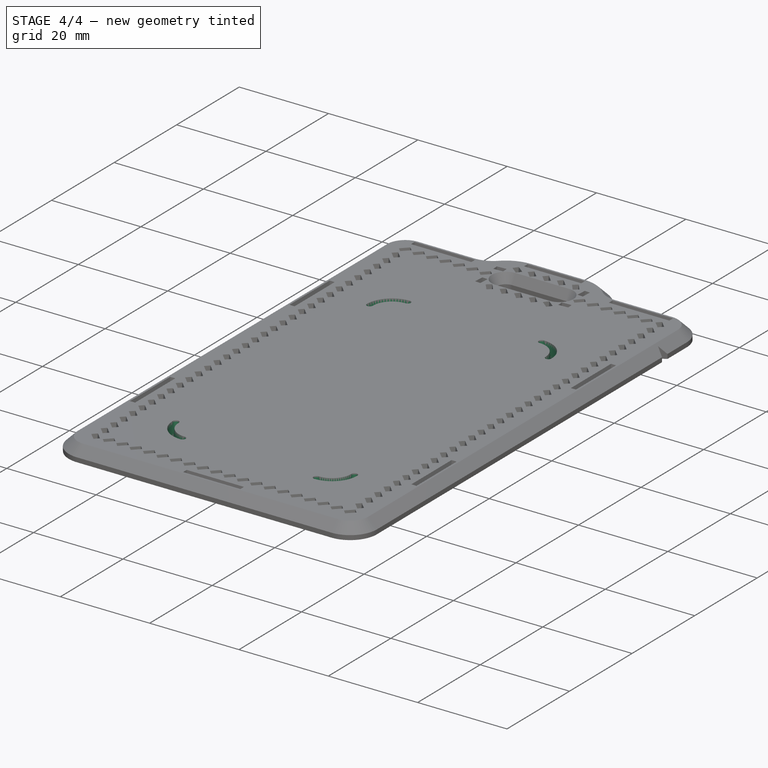
[diagram: stage 4 of 4 — iso view after this stage's code; geometry added in this stage tinted green]
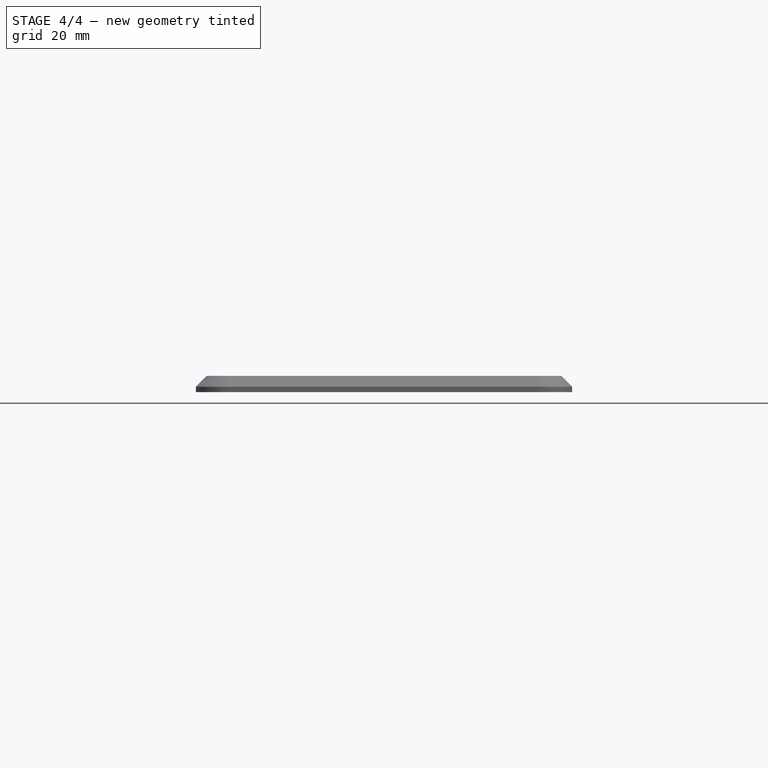
[diagram: stage 4 of 4 — front view after this stage's code; geometry added in this stage tinted green]
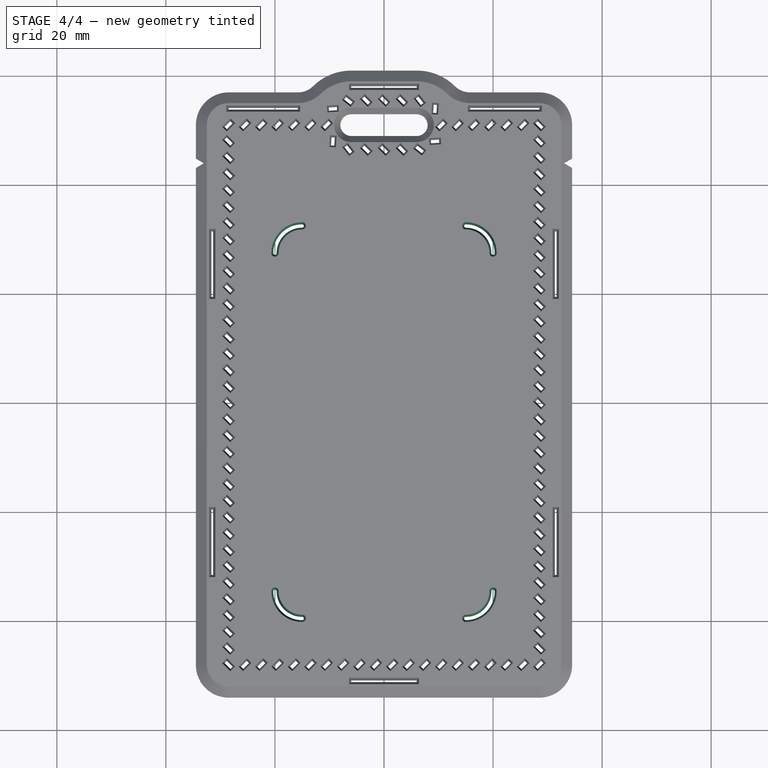
[diagram: stage 4 of 4 — top view after this stage's code; geometry added in this stage tinted green]
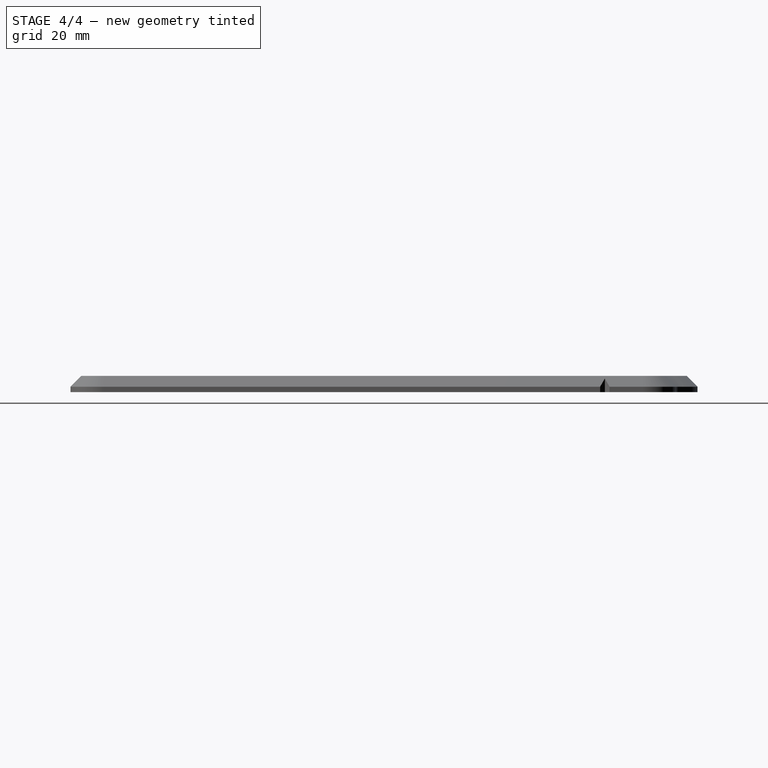
[diagram: stage 4 of 4 — right view after this stage's code; geometry added in this stage tinted green]
FEATURE [PartDesign::Mirrored] Mirrored
  BaseFeature = -> Pocket004
  MirrorPlane = -> Sketch009 [V_Axis]
  Originals = -> [Pocket004]
  Suppressed = false
  TransformMode = 0
FEATURE [Sketcher::SketchObject] Sketch010
  ArcFitTolerance = 1e-06
  AttachmentSupport = -> [XY_Plane001]
  ExternalGeometry = -> [Binder001]
  FullyConstrained = true
  MakeInternals = false
  MapMode = 5
  sketch-geometry (16):
    g0: ArcOfCircle CenterX=-15 CenterY=27.5 CenterZ=0 NormalX=0 NormalY=0 NormalZ=1 AngleXU=0 Radius=5.3 StartAngle=1.5708 EndAngle=3.14159
    g1: ArcOfCircle CenterX=-20 CenterY=27.5 CenterZ=0 NormalX=0 NormalY=0 NormalZ=1 AngleXU=0 Radius=0.3 StartAngle=3.14159 EndAngle=6.28319
    g2: ArcOfCircle CenterX=-15 CenterY=32.5 CenterZ=0 NormalX=0 NormalY=0 NormalZ=1 AngleXU=0 Radius=0.3 StartAngle=4.71239 EndAngle=7.85398
    g3: ArcOfCircle CenterX=-15 CenterY=27.5 CenterZ=0 NormalX=0 NormalY=0 NormalZ=1 AngleXU=0 Radius=4.7 StartAngle=1.5708 EndAngle=3.14159
    g4: ArcOfCircle CenterX=15 CenterY=27.5 CenterZ=0 NormalX=0 NormalY=0 NormalZ=1 AngleXU=0 Radius=5.3 StartAngle=3e-16 EndAngle=1.5708
    g5: ArcOfCircle CenterX=15 CenterY=32.5 CenterZ=0 NormalX=0 NormalY=0 NormalZ=1 AngleXU=0 Radius=0.3 StartAngle=1.5708 EndAngle=4.71239
    g6: ArcOfCircle CenterX=20 CenterY=27.5 CenterZ=0 NormalX=0 NormalY=0 NormalZ=1 AngleXU=0 Radius=0.3 StartAngle=3.14159 EndAngle=6.28319
    g7: ArcOfCircle CenterX=15 CenterY=27.5 CenterZ=0 NormalX=0 NormalY=0 NormalZ=1 AngleXU=0 Radius=4.7 StartAngle=0 EndAngle=1.5708
    g8: ArcOfCircle CenterX=-15 CenterY=-34.5 CenterZ=0 NormalX=0 NormalY=0 NormalZ=1 AngleXU=0 Radius=5.3 StartAngle=3.14159 EndAngle=4.71239
    g9: ArcOfCircle CenterX=-20 CenterY=-34.5 CenterZ=0 NormalX=0 NormalY=0 NormalZ=1 AngleXU=0 Radius=0.3 StartAngle=4.753e-13 EndAngle=3.14159
    g10: ArcOfCircle CenterX=-15 CenterY=-39.5 CenterZ=0 NormalX=0 NormalY=0 NormalZ=1 AngleXU=0 Radius=0.3 StartAngle=4.71239 EndAngle=7.85398
    g11: ArcOfCircle CenterX=-15 CenterY=-34.5 CenterZ=0 NormalX=0 NormalY=0 NormalZ=1 AngleXU=0 Radius=4.7 StartAngle=3.14159 EndAngle=4.71239
    g12: ArcOfCircle CenterX=15 CenterY=-34.5 CenterZ=0 NormalX=0 NormalY=0 NormalZ=1 AngleXU=0 Radius=5.3 StartAngle=4.71239 EndAngle=6.28319
    g13: ArcOfCircle CenterX=20 CenterY=-34.5 CenterZ=0 NormalX=0 NormalY=0 NormalZ=1 AngleXU=0 Radius=0.3 StartAngle=5e-16 EndAngle=3.14159
    g14: ArcOfCircle CenterX=15 CenterY=-39.5 CenterZ=0 NormalX=0 NormalY=0 NormalZ=1 AngleXU=0 Radius=0.3 StartAngle=1.5708 EndAngle=4.71239
    g15: ArcOfCircle CenterX=15 CenterY=-34.5 CenterZ=0 NormalX=0 NormalY=0 NormalZ=1 AngleXU=0 Radius=4.7 StartAngle=4.71239 EndAngle=6.28319
  constraints (36):
    c: Coincident(g0,g3)
    c: Tangent(g3,g2) = 1.5708
    c: Tangent(g3,g1) = 1.5708
    c: Tangent(g0,g2) = -1.5708
    c: Tangent(g0,g1) = -1.5708
    c: Coincident(g0,g-3)
    c: Coincident(g1,g-3)
    c: Coincident(g2,g-3)
    c: Coincident(g4,g7)
    c: Tangent(g7,g6) = 1.5708
    c: Tangent(g7,g5) = 1.5708
    c: Tangent(g4,g6) = -1.5708
    c: Tangent(g4,g5) = -1.5708
    c: Coincident(g5,g-4)
    c: Coincident(g4,g-4)
    c: Horizontal(g6,g-4)
    c: Coincident(g8,g11)
    c: Tangent(g11,g10) = 1.5708
    c: Tangent(g11,g9) = 1.5708
    c: Tangent(g8,g10) = -1.5708
    c: Tangent(g8,g9) = -1.5708
    c: Coincident(g8,g-5)
    c: Coincident(g9,g-5)
    c: Vertical(g10,g-5)
    c: Coincident(g12,g15)
    c: Tangent(g15,g14) = 1.5708
    c: Tangent(g15,g13) = 1.5708
    c: Tangent(g12,g14) = -1.5708
    c: Tangent(g12,g13) = -1.5708
    c: Coincident(g12,g-6)
    c: Coincident(g13,g-6)
    c: Vertical(g14,g-6)
    c: Equal(g2,g5)
    c: Equal(g5,g10)
    c: Equal(g10,g14)
    c: Radius(g6) = 0.3
FEATURE [PartDesign::Pocket] Pocket005
  BaseFeature = -> Mirrored
  Direction = (0,0,-1)
  Length = 5
  Length2 = 5
  Profile = -> Sketch010
  ReferenceAxis = -> Sketch010 [N_Axis]
  Reversed = true
  Suppressed = false
  TaperAngle = 7
  Type = 0
FEATURE [PartDesign::Body] Body
  AllowCompound = true
  Group = -> [Binder,Binder001,Binder002,Binder003,Binder004,Pad,Pad001,Binder005,Pocket,Pocket001,Sketch008,Pocket002,Pocket003,Sketch009,Pocket004,Mirrored,Sketch010,Pocket005]
  Origin = -> Origin001
  Tip = -> Pocket005
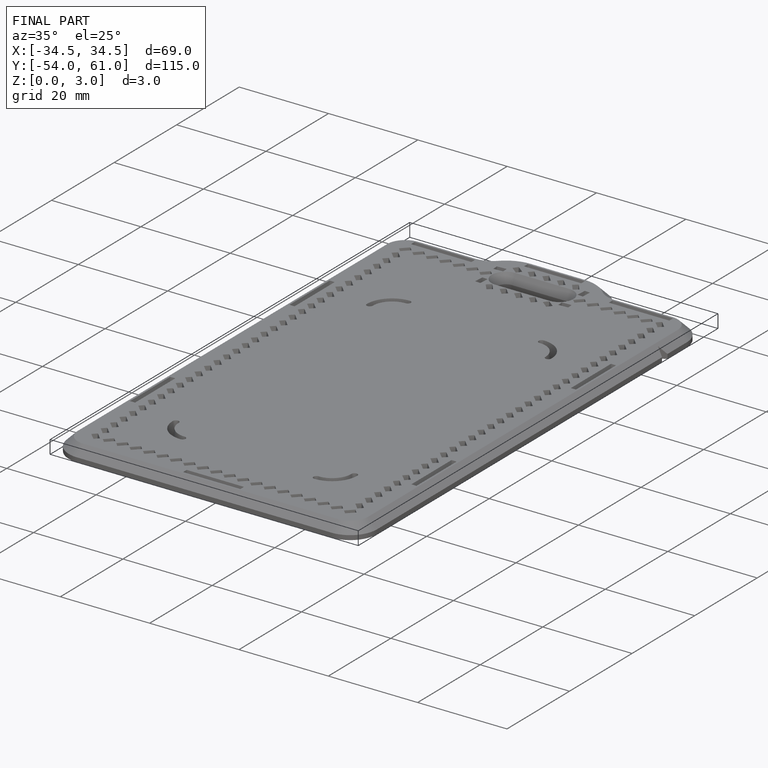
[diagram: finished part — iso view with bounding-box wireframe]
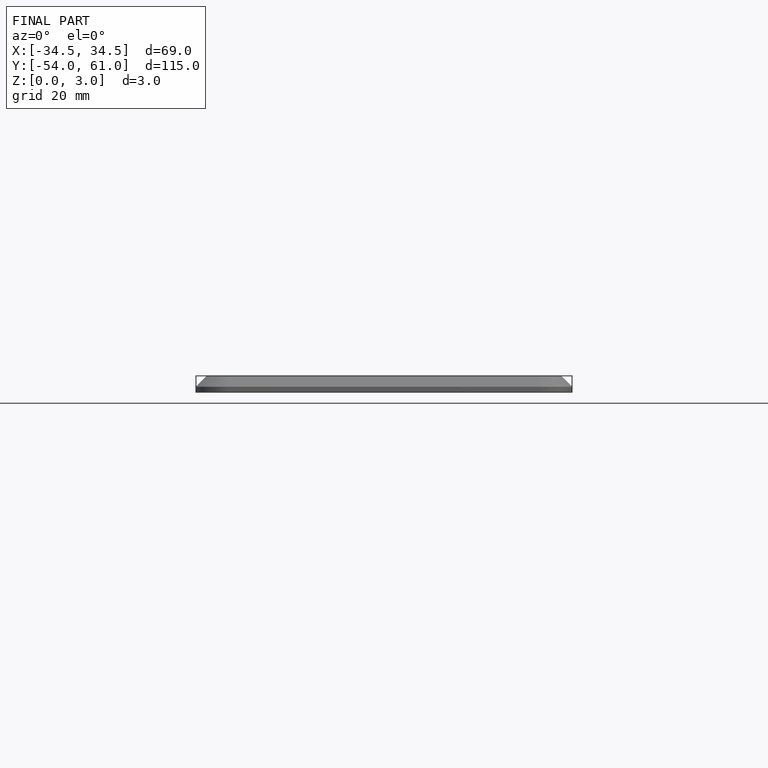
[diagram: finished part — front view with bounding-box wireframe]
